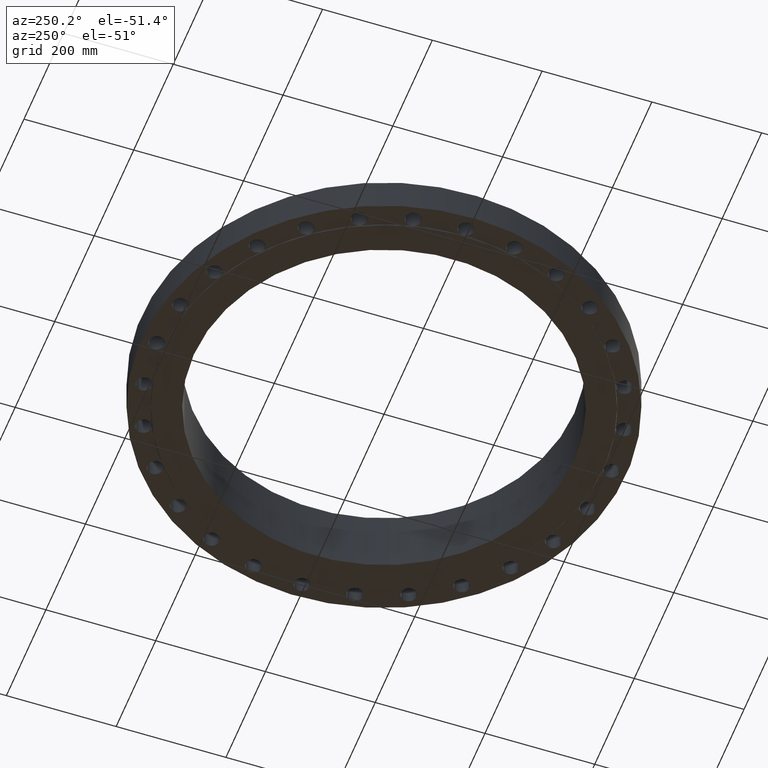
[diagram: clean part render]
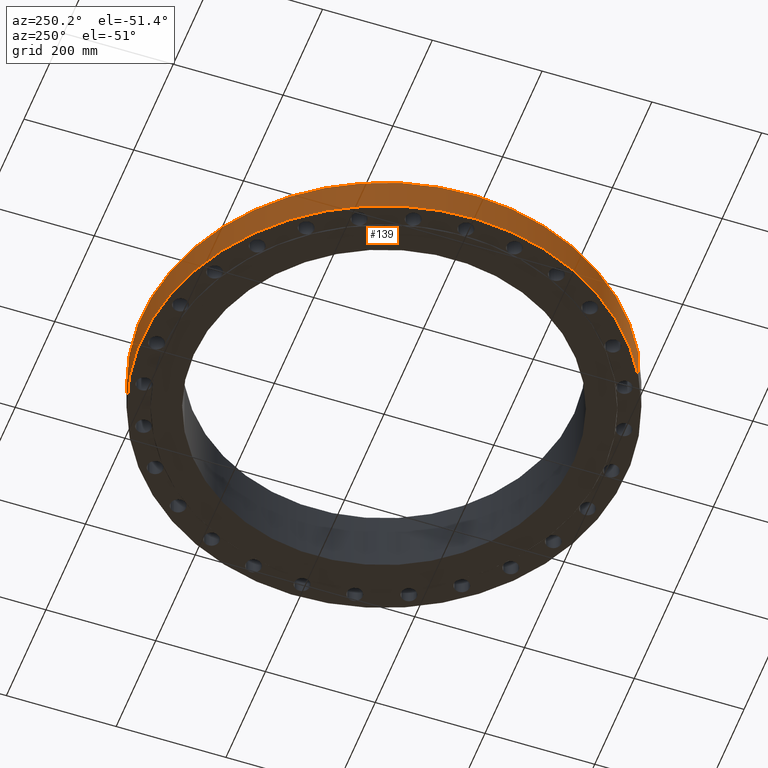
[diagram: same view with one face highlighted and labeled with its STEP entity id]
A machine part, auxiliary view. The second image highlights one B-rep face of the part: STEP entity #139.
In plain terms, the highlighted cylindrical surface (partial cylindrical patch) has radius 441.325 mm, axis along (0, 0, -1).
Its self-contained STEP definition (entity closure, byte-faithful):
#103=AXIS2_PLACEMENT_3D('Cylinder Axis2P3D',#100,#101,#102) ;
#107=AXIS2_PLACEMENT_3D('Circle Axis2P3D',#105,#106,$) ;
#123=AXIS2_PLACEMENT_3D('Circle Axis2P3D',#121,#122,$) ;
#100=CARTESIAN_POINT('Axis2P3D Location',(0.,0.,2.51875000001)) ;
#105=CARTESIAN_POINT('Axis2P3D Location',(0.,0.,1.95818864186E-015)) ;
#109=CARTESIAN_POINT('Vertex',(-8.33001873328,-15.2479970129,1.95818864186E-015)) ;
#111=CARTESIAN_POINT('Vertex',(8.33001873328,15.2479970129,1.95818864186E-015)) ;
#114=CARTESIAN_POINT('Line Origine',(-8.33001873328,-15.2479970129,1.25000000001)) ;
#118=CARTESIAN_POINT('Vertex',(-8.33001873328,-15.2479970129,2.50000000001)) ;
#121=CARTESIAN_POINT('Axis2P3D Location',(0.,0.,2.50000000001)) ;
#125=CARTESIAN_POINT('Vertex',(8.33001873328,15.2479970129,2.50000000001)) ;
#128=CARTESIAN_POINT('Line Origine',(8.33001873328,15.2479970129,1.25000000001)) ;
#101=DIRECTION('Axis2P3D Direction',(0.,0.,-0.0393700787402)) ;
#102=DIRECTION('Axis2P3D XDirection',(0.0188750212049,0.0345504945626,0.)) ;
#106=DIRECTION('Axis2P3D Direction',(0.,0.,-0.0393700787402)) ;
#115=DIRECTION('Vector Direction',(0.,0.,-0.0393700787402)) ;
#122=DIRECTION('Axis2P3D Direction',(0.,0.,-0.0393700787402)) ;
#129=DIRECTION('Vector Direction',(0.,0.,-0.0393700787402)) ;
#116=VECTOR('Line Direction',#115,0.0393700787402) ;
#130=VECTOR('Line Direction',#129,0.0393700787402) ;
#134=ORIENTED_EDGE('',*,*,#113,.F.) ;
#135=ORIENTED_EDGE('',*,*,#120,.T.) ;
#136=ORIENTED_EDGE('',*,*,#127,.T.) ;
#137=ORIENTED_EDGE('',*,*,#132,.F.) ;
#139=ADVANCED_FACE('PartBody',(#138),#104,.T.) ;
#108=CIRCLE('generated circle',#107,17.3750000001) ;
#124=CIRCLE('generated circle',#123,17.3750000001) ;
#104=CYLINDRICAL_SURFACE('generated cylinder',#103,17.3750000001) ;
#113=EDGE_CURVE('',#110,#112,#108,.T.) ;
#120=EDGE_CURVE('',#110,#119,#117,.F.) ;
#127=EDGE_CURVE('',#119,#126,#124,.T.) ;
#132=EDGE_CURVE('',#112,#126,#131,.F.) ;
#133=EDGE_LOOP('',(#134,#135,#136,#137)) ;
#138=FACE_OUTER_BOUND('',#133,.T.) ;
#117=LINE('Line',#114,#116) ;
#131=LINE('Line',#128,#130) ;
#110=VERTEX_POINT('',#109) ;
#112=VERTEX_POINT('',#111) ;
#119=VERTEX_POINT('',#118) ;
#126=VERTEX_POINT('',#125) ;